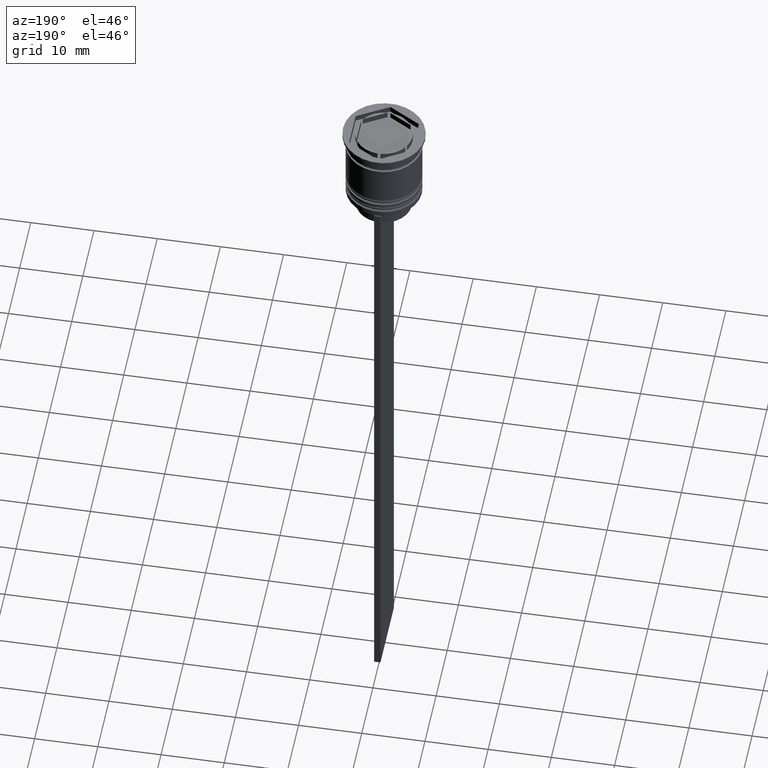
[diagram: clean part render]
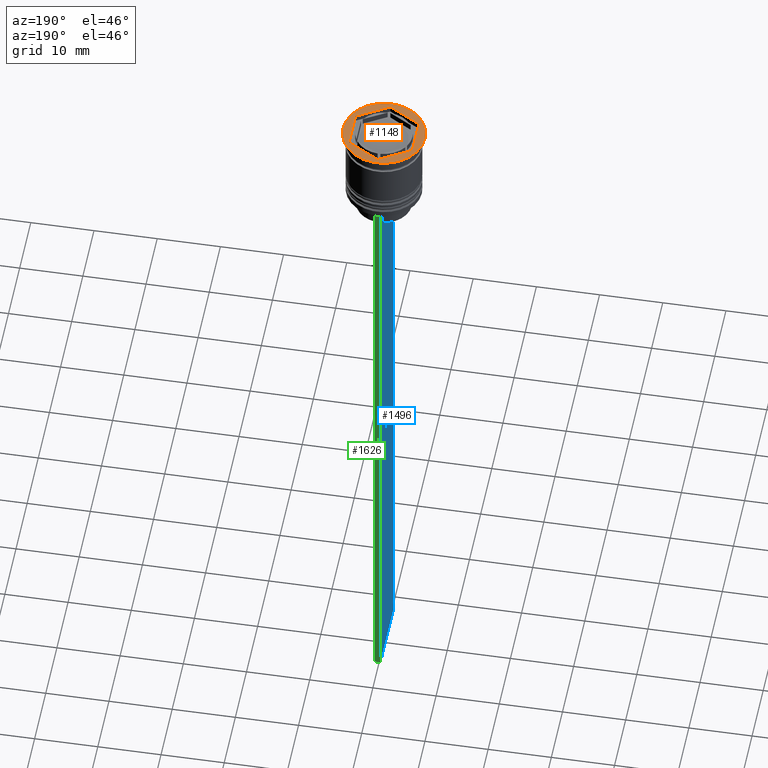
[diagram: same view with three faces highlighted in distinct colors, each labeled with its STEP entity id]
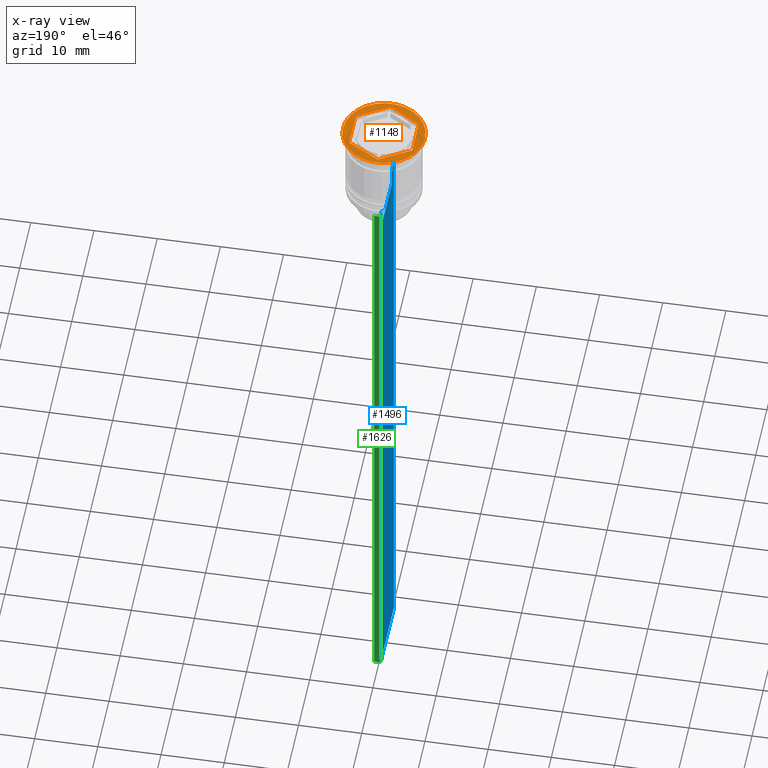
[diagram: x-ray of the same camera — body ghosted, the three highlighted faces saturated]
A machine part, auxiliary view with three faces highlighted in distinct colors.
The next image is the same camera in x-ray (body ghosted, the three faces saturated) — at least one of them is partly hidden behind the body in this view.
Their STEP definitions:

[orange] entity #1148 — the highlighted planar face has unit normal (0, -0, 1).
#3 = AXIS2_PLACEMENT_3D ( 'NONE', #520, #2054, #2075 ) ;
#122 = LINE ( 'NONE', #1542, #317 ) ;
#172 = DIRECTION ( 'NONE',  ( 1.502314598737159278E-16, 1.000000000000000000, 0.000000000000000000 ) ) ;
#184 = DIRECTION ( 'NONE',  ( 0.8660254037844387076, -0.4999999999999997224, 0.000000000000000000 ) ) ;
#203 = VECTOR ( 'NONE', #417, 1000.000000000000227 ) ;
#210 = ORIENTED_EDGE ( 'NONE', *, *, #2275, .T. ) ;
#317 = VECTOR ( 'NONE', #172, 1000.000000000000000 ) ;
#320 = DIRECTION ( 'NONE',  ( 0.000000000000000000, -1.000000000000000000, 0.000000000000000000 ) ) ;
#330 = CARTESIAN_POINT ( 'NONE',  ( -6.500000000000000000, 7.960204194457795477E-16, 0.000000000000000000 ) ) ;
#372 = DIRECTION ( 'NONE',  ( -0.000000000000000000, -0.000000000000000000, 1.000000000000000000 ) ) ;
#417 = DIRECTION ( 'NONE',  ( 0.8660254037844385966, 0.4999999999999998890, 0.000000000000000000 ) ) ;
#453 = LINE ( 'NONE', #992, #203 ) ;
#520 = CARTESIAN_POINT ( 'NONE',  ( 0.000000000000000000, 0.000000000000000000, 0.000000000000000000 ) ) ;
#542 = CARTESIAN_POINT ( 'NONE',  ( 0.000000000000000000, 0.000000000000000000, 0.000000000000000000 ) ) ;
#620 = CARTESIAN_POINT ( 'NONE',  ( 5.000000000000000888, 2.886751345948129543, 0.000000000000000000 ) ) ;
#632 = VECTOR ( 'NONE', #2259, 1000.000000000000114 ) ;
#669 = EDGE_LOOP ( 'NONE', ( #2352, #210 ) ) ;
#671 = ORIENTED_EDGE ( 'NONE', *, *, #687, .F. ) ;
#687 = EDGE_CURVE ( 'NONE', #1161, #1927, #1114, .T. ) ;
#735 = ORIENTED_EDGE ( 'NONE', *, *, #1121, .F. ) ;
#741 = CARTESIAN_POINT ( 'NONE',  ( -5.000000000000000888, -2.886751345948129543, 0.000000000000000000 ) ) ;
#825 = CARTESIAN_POINT ( 'NONE',  ( 5.612359739892467248E-18, -5.773502691896257311, 0.000000000000000000 ) ) ;
#830 = CARTESIAN_POINT ( 'NONE',  ( -5.000000000000000888, -2.886751345948129543, 0.000000000000000000 ) ) ;
#888 = DIRECTION ( 'NONE',  ( 0.000000000000000000, -0.000000000000000000, 1.000000000000000000 ) ) ;
#918 = ORIENTED_EDGE ( 'NONE', *, *, #1282, .F. ) ;
#942 = EDGE_CURVE ( 'NONE', #2151, #1161, #1620, .T. ) ;
#948 = VECTOR ( 'NONE', #2152, 1000.000000000000114 ) ;
#976 = VERTEX_POINT ( 'NONE', #825 ) ;
#992 = CARTESIAN_POINT ( 'NONE',  ( 5.612359739892467248E-18, -5.773502691896257311, 0.000000000000000000 ) ) ;
#1048 = FACE_OUTER_BOUND ( 'NONE', #669, .T. ) ;
#1057 = DIRECTION ( 'NONE',  ( 1.000000000000000000, 0.000000000000000000, 0.000000000000000000 ) ) ;
#1070 = VERTEX_POINT ( 'NONE', #1857 ) ;
#1107 = VECTOR ( 'NONE', #320, 1000.000000000000000 ) ;
#1114 = LINE ( 'NONE', #1474, #632 ) ;
#1121 = EDGE_CURVE ( 'NONE', #1927, #2225, #2405, .T. ) ;
#1142 = DIRECTION ( 'NONE',  ( 1.000000000000000000, 0.000000000000000000, 0.000000000000000000 ) ) ;
#1148 = ADVANCED_FACE ( 'NONE', ( #2222, #1048 ), #1828, .T. ) ;
#1161 = VERTEX_POINT ( 'NONE', #1275 ) ;
#1171 = EDGE_CURVE ( 'NONE', #1741, #2151, #122, .T. ) ;
#1186 = ORIENTED_EDGE ( 'NONE', *, *, #1795, .F. ) ;
#1208 = EDGE_CURVE ( 'NONE', #1070, #1978, #1718, .T. ) ;
#1233 = AXIS2_PLACEMENT_3D ( 'NONE', #542, #372, #1142 ) ;
#1275 = CARTESIAN_POINT ( 'NONE',  ( 0.000000000000000000, 5.773502691896257311, 0.000000000000000000 ) ) ;
#1282 = EDGE_CURVE ( 'NONE', #2225, #976, #1518, .T. ) ;
#1474 = CARTESIAN_POINT ( 'NONE',  ( 0.000000000000000000, 5.773502691896257311, 0.000000000000000000 ) ) ;
#1477 = CARTESIAN_POINT ( 'NONE',  ( -5.000000000000000888, 2.886751345948128655, 0.000000000000000000 ) ) ;
#1484 = CARTESIAN_POINT ( 'NONE',  ( 0.000000000000000000, 0.000000000000000000, 0.000000000000000000 ) ) ;
#1492 = CARTESIAN_POINT ( 'NONE',  ( 5.000000000000000000, -2.886751345948128655, 0.000000000000000000 ) ) ;
#1518 = LINE ( 'NONE', #741, #1804 ) ;
#1542 = CARTESIAN_POINT ( 'NONE',  ( 5.000000000000000000, -2.886751345948128655, 0.000000000000000000 ) ) ;
#1594 = CARTESIAN_POINT ( 'NONE',  ( 5.000000000000000888, 2.886751345948129543, 0.000000000000000000 ) ) ;
#1620 = LINE ( 'NONE', #1594, #948 ) ;
#1658 = CARTESIAN_POINT ( 'NONE',  ( -5.000000000000000888, 2.886751345948128655, 0.000000000000000000 ) ) ;
#1718 = CIRCLE ( 'NONE', #1233, 6.500000000000000000 ) ;
#1741 = VERTEX_POINT ( 'NONE', #1492 ) ;
#1757 = AXIS2_PLACEMENT_3D ( 'NONE', #1484, #888, #1057 ) ;
#1795 = EDGE_CURVE ( 'NONE', #976, #1741, #453, .T. ) ;
#1804 = VECTOR ( 'NONE', #184, 1000.000000000000114 ) ;
#1828 = PLANE ( 'NONE',  #1757 ) ;
#1857 = CARTESIAN_POINT ( 'NONE',  ( 6.500000000000000000, 0.000000000000000000, 0.000000000000000000 ) ) ;
#1927 = VERTEX_POINT ( 'NONE', #1477 ) ;
#1978 = VERTEX_POINT ( 'NONE', #330 ) ;
#2054 = DIRECTION ( 'NONE',  ( -0.000000000000000000, -0.000000000000000000, 1.000000000000000000 ) ) ;
#2075 = DIRECTION ( 'NONE',  ( 1.000000000000000000, 0.000000000000000000, 0.000000000000000000 ) ) ;
#2151 = VERTEX_POINT ( 'NONE', #620 ) ;
#2152 = DIRECTION ( 'NONE',  ( -0.8660254037844387076, 0.4999999999999997224, 0.000000000000000000 ) ) ;
#2174 = CIRCLE ( 'NONE', #3, 6.500000000000000000 ) ;
#2222 = FACE_BOUND ( 'NONE', #2434, .T. ) ;
#2225 = VERTEX_POINT ( 'NONE', #830 ) ;
#2259 = DIRECTION ( 'NONE',  ( -0.8660254037844387076, -0.4999999999999998890, 0.000000000000000000 ) ) ;
#2275 = EDGE_CURVE ( 'NONE', #1978, #1070, #2174, .T. ) ;
#2324 = ORIENTED_EDGE ( 'NONE', *, *, #942, .F. ) ;
#2352 = ORIENTED_EDGE ( 'NONE', *, *, #1208, .T. ) ;
#2405 = LINE ( 'NONE', #1658, #1107 ) ;
#2434 = EDGE_LOOP ( 'NONE', ( #2324, #2481, #1186, #918, #735, #671 ) ) ;
#2481 = ORIENTED_EDGE ( 'NONE', *, *, #1171, .F. ) ;

[blue] entity #1496 — the highlighted planar face has unit normal (-1, 0, 0).
#25 = ORIENTED_EDGE ( 'NONE', *, *, #2137, .F. ) ;
#38 = DIRECTION ( 'NONE',  ( 0.000000000000000000, -1.000000000000000000, 0.000000000000000000 ) ) ;
#58 = LINE ( 'NONE', #1966, #555 ) ;
#70 = CARTESIAN_POINT ( 'NONE',  ( -0.4999999999999997780, -6.000000000000000000, -12.50000000000000000 ) ) ;
#82 = VECTOR ( 'NONE', #1093, 1000.000000000000000 ) ;
#105 = CARTESIAN_POINT ( 'NONE',  ( -0.4999999999999997780, 5.878775382679627626, -12.50000000000000000 ) ) ;
#112 = DIRECTION ( 'NONE',  ( 0.000000000000000000, 0.000000000000000000, -1.000000000000000000 ) ) ;
#151 = B_SPLINE_CURVE_WITH_KNOTS ( 'NONE', 3,
 ( #1427, #871, #1824, #2201 ),
 .UNSPECIFIED., .F., .F.,
 ( 4, 4 ),
 ( 0.008336552452178418518, 0.009045730124312837891 ),
 .UNSPECIFIED. ) ;
#202 = VECTOR ( 'NONE', #38, 1000.000000000000000 ) ;
#213 = CARTESIAN_POINT ( 'NONE',  ( -0.4999999999999997780, -6.000000000000000000, -112.5000000000000000 ) ) ;
#305 = CARTESIAN_POINT ( 'NONE',  ( -0.4999999999999997780, 4.371498598878878816, 0.000000000000000000 ) ) ;
#332 = CARTESIAN_POINT ( 'NONE',  ( -0.4999999999999997780, -6.000000000000000000, -0.4584054212077061097 ) ) ;
#342 = PLANE ( 'NONE',  #989 ) ;
#402 = DIRECTION ( 'NONE',  ( 0.000000000000000000, 1.000000000000000000, 0.000000000000000000 ) ) ;
#427 = CARTESIAN_POINT ( 'NONE',  ( -0.4999999999999997780, -4.874423042781576676, -12.50000000000000000 ) ) ;
#436 = EDGE_CURVE ( 'NONE', #2009, #2420, #1381, .T. ) ;
#438 = VECTOR ( 'NONE', #112, 1000.000000000000000 ) ;
#463 = ORIENTED_EDGE ( 'NONE', *, *, #1379, .F. ) ;
#473 = CARTESIAN_POINT ( 'NONE',  ( -0.4999999999999997780, -4.371498598878878816, -13.00000000000000178 ) ) ;
#481 = VECTOR ( 'NONE', #967, 1000.000000000000000 ) ;
#503 = FACE_OUTER_BOUND ( 'NONE', #2175, .T. ) ;
#504 = EDGE_CURVE ( 'NONE', #2261, #621, #58, .T. ) ;
#524 = CARTESIAN_POINT ( 'NONE',  ( -0.4999999999999997780, 6.000000000000000888, -112.5000000000000000 ) ) ;
#526 = VERTEX_POINT ( 'NONE', #815 ) ;
#555 = VECTOR ( 'NONE', #1204, 1000.000000000000000 ) ;
#561 = ORIENTED_EDGE ( 'NONE', *, *, #787, .F. ) ;
#568 = CARTESIAN_POINT ( 'NONE',  ( -0.4999999999999997780, 4.874423042781576676, -12.50000000000000000 ) ) ;
#621 = VERTEX_POINT ( 'NONE', #524 ) ;
#679 = DIRECTION ( 'NONE',  ( 0.000000000000000000, 0.000000000000000000, 1.000000000000000000 ) ) ;
#719 = CARTESIAN_POINT ( 'NONE',  ( -0.4999999999999997780, -4.371498598878878816, 0.000000000000000000 ) ) ;
#736 = CARTESIAN_POINT ( 'NONE',  ( -0.4999999999999997780, -6.000000000000000000, -12.50000000000000000 ) ) ;
#771 = ORIENTED_EDGE ( 'NONE', *, *, #1013, .F. ) ;
#787 = EDGE_CURVE ( 'NONE', #1914, #2485, #2143, .T. ) ;
#801 = ORIENTED_EDGE ( 'NONE', *, *, #1551, .F. ) ;
#807 = ORIENTED_EDGE ( 'NONE', *, *, #1243, .F. ) ;
#811 = CARTESIAN_POINT ( 'NONE',  ( -0.4999999999999997780, -6.000000000000000000, -12.50000000000000000 ) ) ;
#815 = CARTESIAN_POINT ( 'NONE',  ( -0.4999999999999997780, 4.371498598878878816, -13.00000000000000178 ) ) ;
#837 = CARTESIAN_POINT ( 'NONE',  ( -0.4999999999999997780, 4.371498598878878816, -15.50000000000000000 ) ) ;
#839 = VECTOR ( 'NONE', #1485, 1000.000000000000000 ) ;
#858 = CARTESIAN_POINT ( 'NONE',  ( -0.4999999999999997780, -4.539195586926424220, -12.83338928448044136 ) ) ;
#871 = CARTESIAN_POINT ( 'NONE',  ( -0.4999999999999997780, 4.706831415367290106, -12.66671683478478982 ) ) ;
#931 = CARTESIAN_POINT ( 'NONE',  ( -0.4999999999999997780, -4.371498598878878816, -13.00000000000000178 ) ) ;
#938 = ORIENTED_EDGE ( 'NONE', *, *, #2362, .F. ) ;
#967 = DIRECTION ( 'NONE',  ( 0.000000000000000000, -1.000000000000000000, 0.000000000000000000 ) ) ;
#974 = CARTESIAN_POINT ( 'NONE',  ( -0.4999999999999997780, 6.000000000000001776, -12.50000000000000000 ) ) ;
#989 = AXIS2_PLACEMENT_3D ( 'NONE', #332, #1665, #679 ) ;
#1000 = CARTESIAN_POINT ( 'NONE',  ( -0.4999999999999997780, -6.000000000000000000, -0.4584054212077061097 ) ) ;
#1013 = EDGE_CURVE ( 'NONE', #2096, #2009, #1213, .T. ) ;
#1093 = DIRECTION ( 'NONE',  ( 0.000000000000000000, 0.000000000000000000, -1.000000000000000000 ) ) ;
#1133 = LINE ( 'NONE', #1348, #481 ) ;
#1174 = LINE ( 'NONE', #213, #1565 ) ;
#1204 = DIRECTION ( 'NONE',  ( 0.000000000000000000, 0.000000000000000000, -1.000000000000000000 ) ) ;
#1213 = LINE ( 'NONE', #70, #2406 ) ;
#1243 = EDGE_CURVE ( 'NONE', #2261, #1914, #1133, .T. ) ;
#1332 = CARTESIAN_POINT ( 'NONE',  ( -0.4999999999999997780, -5.878775382679627626, -12.50000000000000000 ) ) ;
#1347 = VECTOR ( 'NONE', #1747, 1000.000000000000000 ) ;
#1348 = CARTESIAN_POINT ( 'NONE',  ( -0.4999999999999997780, -6.000000000000000000, -12.50000000000000000 ) ) ;
#1377 = VERTEX_POINT ( 'NONE', #837 ) ;
#1379 = EDGE_CURVE ( 'NONE', #1377, #1439, #1997, .T. ) ;
#1381 = LINE ( 'NONE', #1000, #438 ) ;
#1406 = LINE ( 'NONE', #811, #2046 ) ;
#1425 = EDGE_CURVE ( 'NONE', #1799, #2096, #1406, .T. ) ;
#1427 = CARTESIAN_POINT ( 'NONE',  ( -0.4999999999999997780, 4.874423042781576676, -12.50000000000000000 ) ) ;
#1433 = B_SPLINE_CURVE_WITH_KNOTS ( 'NONE', 3,
 ( #473, #858, #1623, #2397 ),
 .UNSPECIFIED., .F., .F.,
 ( 4, 4 ),
 ( 0.02089901220910806920, 0.02161421017310284978 ),
 .UNSPECIFIED. ) ;
#1439 = VERTEX_POINT ( 'NONE', #2150 ) ;
#1445 = LINE ( 'NONE', #305, #82 ) ;
#1485 = DIRECTION ( 'NONE',  ( -0.000000000000000000, -0.000000000000000000, 1.000000000000000000 ) ) ;
#1495 = LINE ( 'NONE', #719, #839 ) ;
#1496 = ADVANCED_FACE ( 'NONE', ( #503 ), #342, .T. ) ;
#1523 = CARTESIAN_POINT ( 'NONE',  ( -0.4999999999999997780, -6.000000000000000000, -12.50000000000000000 ) ) ;
#1545 = ORIENTED_EDGE ( 'NONE', *, *, #504, .T. ) ;
#1551 = EDGE_CURVE ( 'NONE', #526, #1377, #1445, .T. ) ;
#1562 = ORIENTED_EDGE ( 'NONE', *, *, #1908, .F. ) ;
#1565 = VECTOR ( 'NONE', #402, 1000.000000000000000 ) ;
#1568 = DIRECTION ( 'NONE',  ( 0.000000000000000000, -1.000000000000000000, 0.000000000000000000 ) ) ;
#1623 = CARTESIAN_POINT ( 'NONE',  ( -0.4999999999999997780, -4.706831372970964544, -12.66671687695981596 ) ) ;
#1665 = DIRECTION ( 'NONE',  ( -1.000000000000000000, 0.000000000000000000, 0.000000000000000000 ) ) ;
#1747 = DIRECTION ( 'NONE',  ( 0.000000000000000000, -1.000000000000000000, 0.000000000000000000 ) ) ;
#1799 = VERTEX_POINT ( 'NONE', #427 ) ;
#1806 = CARTESIAN_POINT ( 'NONE',  ( -0.4999999999999997780, -6.000000000000000000, -112.5000000000000000 ) ) ;
#1824 = CARTESIAN_POINT ( 'NONE',  ( -0.4999999999999997780, 4.539195634199897356, -12.83338923751318816 ) ) ;
#1908 = EDGE_CURVE ( 'NONE', #2485, #526, #151, .T. ) ;
#1914 = VERTEX_POINT ( 'NONE', #105 ) ;
#1966 = CARTESIAN_POINT ( 'NONE',  ( -0.4999999999999997780, 6.000000000000000888, -0.4584054212077061097 ) ) ;
#1973 = CARTESIAN_POINT ( 'NONE',  ( -0.4999999999999997780, 4.399999999999999467, -15.50000000000000000 ) ) ;
#1997 = LINE ( 'NONE', #1973, #202 ) ;
#2009 = VERTEX_POINT ( 'NONE', #736 ) ;
#2046 = VECTOR ( 'NONE', #1568, 1000.000000000000000 ) ;
#2066 = VERTEX_POINT ( 'NONE', #931 ) ;
#2096 = VERTEX_POINT ( 'NONE', #1332 ) ;
#2109 = ORIENTED_EDGE ( 'NONE', *, *, #436, .F. ) ;
#2137 = EDGE_CURVE ( 'NONE', #2420, #621, #1174, .T. ) ;
#2143 = LINE ( 'NONE', #1523, #1347 ) ;
#2150 = CARTESIAN_POINT ( 'NONE',  ( -0.4999999999999997780, -4.371498598878878816, -15.50000000000000000 ) ) ;
#2175 = EDGE_LOOP ( 'NONE', ( #1562, #561, #807, #1545, #25, #2109, #771, #2398, #2441, #938, #463, #801 ) ) ;
#2201 = CARTESIAN_POINT ( 'NONE',  ( -0.4999999999999997780, 4.371498598878878816, -13.00000000000000178 ) ) ;
#2261 = VERTEX_POINT ( 'NONE', #974 ) ;
#2362 = EDGE_CURVE ( 'NONE', #1439, #2066, #1495, .T. ) ;
#2368 = DIRECTION ( 'NONE',  ( 0.000000000000000000, -1.000000000000000000, 0.000000000000000000 ) ) ;
#2397 = CARTESIAN_POINT ( 'NONE',  ( -0.4999999999999997780, -4.874423042781576676, -12.50000000000000000 ) ) ;
#2398 = ORIENTED_EDGE ( 'NONE', *, *, #1425, .F. ) ;
#2406 = VECTOR ( 'NONE', #2368, 1000.000000000000000 ) ;
#2420 = VERTEX_POINT ( 'NONE', #1806 ) ;
#2423 = EDGE_CURVE ( 'NONE', #2066, #1799, #1433, .T. ) ;
#2441 = ORIENTED_EDGE ( 'NONE', *, *, #2423, .F. ) ;
#2485 = VERTEX_POINT ( 'NONE', #568 ) ;

[green] entity #1626 — the highlighted planar face has unit normal (0, -1, -0).
#43 = VECTOR ( 'NONE', #1904, 1000.000000000000000 ) ;
#58 = LINE ( 'NONE', #1966, #555 ) ;
#99 = EDGE_CURVE ( 'NONE', #2261, #2370, #2338, .T. ) ;
#116 = VECTOR ( 'NONE', #1373, 1000.000000000000000 ) ;
#152 = CARTESIAN_POINT ( 'NONE',  ( 0.5000000000000002220, 6.000000000000000888, -0.4584054212077061097 ) ) ;
#504 = EDGE_CURVE ( 'NONE', #2261, #621, #58, .T. ) ;
#524 = CARTESIAN_POINT ( 'NONE',  ( -0.4999999999999997780, 6.000000000000000888, -112.5000000000000000 ) ) ;
#532 = CARTESIAN_POINT ( 'NONE',  ( 0.5000000000000002220, 6.000000000000000888, -12.50000000000000000 ) ) ;
#554 = DIRECTION ( 'NONE',  ( 0.000000000000000000, 0.000000000000000000, -1.000000000000000000 ) ) ;
#555 = VECTOR ( 'NONE', #1204, 1000.000000000000000 ) ;
#621 = VERTEX_POINT ( 'NONE', #524 ) ;
#754 = LINE ( 'NONE', #1327, #1037 ) ;
#875 = DIRECTION ( 'NONE',  ( 0.000000000000000000, 0.000000000000000000, -1.000000000000000000 ) ) ;
#974 = CARTESIAN_POINT ( 'NONE',  ( -0.4999999999999997780, 6.000000000000001776, -12.50000000000000000 ) ) ;
#1037 = VECTOR ( 'NONE', #554, 1000.000000000000000 ) ;
#1124 = CARTESIAN_POINT ( 'NONE',  ( 0.5000000000000002220, 6.000000000000000888, -112.5000000000000000 ) ) ;
#1149 = AXIS2_PLACEMENT_3D ( 'NONE', #152, #1617, #875 ) ;
#1204 = DIRECTION ( 'NONE',  ( 0.000000000000000000, 0.000000000000000000, -1.000000000000000000 ) ) ;
#1274 = ORIENTED_EDGE ( 'NONE', *, *, #2475, .T. ) ;
#1286 = FACE_OUTER_BOUND ( 'NONE', #1532, .T. ) ;
#1327 = CARTESIAN_POINT ( 'NONE',  ( 0.5000000000000002220, 6.000000000000000888, -0.4584054212077061097 ) ) ;
#1366 = CARTESIAN_POINT ( 'NONE',  ( 0.5000000000000002220, 6.000000000000000888, -112.5000000000000000 ) ) ;
#1373 = DIRECTION ( 'NONE',  ( 1.000000000000000000, 0.000000000000000000, 0.000000000000000000 ) ) ;
#1429 = PLANE ( 'NONE',  #1149 ) ;
#1504 = ORIENTED_EDGE ( 'NONE', *, *, #99, .T. ) ;
#1532 = EDGE_LOOP ( 'NONE', ( #1855, #1504, #2090, #1274 ) ) ;
#1617 = DIRECTION ( 'NONE',  ( 0.000000000000000000, -1.000000000000000000, -0.000000000000000000 ) ) ;
#1626 = ADVANCED_FACE ( 'NONE', ( #1286 ), #1429, .F. ) ;
#1771 = CARTESIAN_POINT ( 'NONE',  ( 0.5000000000000002220, 6.000000000000000888, -12.50000000000000000 ) ) ;
#1855 = ORIENTED_EDGE ( 'NONE', *, *, #504, .F. ) ;
#1904 = DIRECTION ( 'NONE',  ( -1.000000000000000000, 0.000000000000000000, 0.000000000000000000 ) ) ;
#1966 = CARTESIAN_POINT ( 'NONE',  ( -0.4999999999999997780, 6.000000000000000888, -0.4584054212077061097 ) ) ;
#2090 = ORIENTED_EDGE ( 'NONE', *, *, #2445, .T. ) ;
#2116 = LINE ( 'NONE', #1366, #43 ) ;
#2261 = VERTEX_POINT ( 'NONE', #974 ) ;
#2338 = LINE ( 'NONE', #1771, #116 ) ;
#2370 = VERTEX_POINT ( 'NONE', #532 ) ;
#2445 = EDGE_CURVE ( 'NONE', #2370, #2492, #754, .T. ) ;
#2475 = EDGE_CURVE ( 'NONE', #2492, #621, #2116, .T. ) ;
#2492 = VERTEX_POINT ( 'NONE', #1124 ) ;